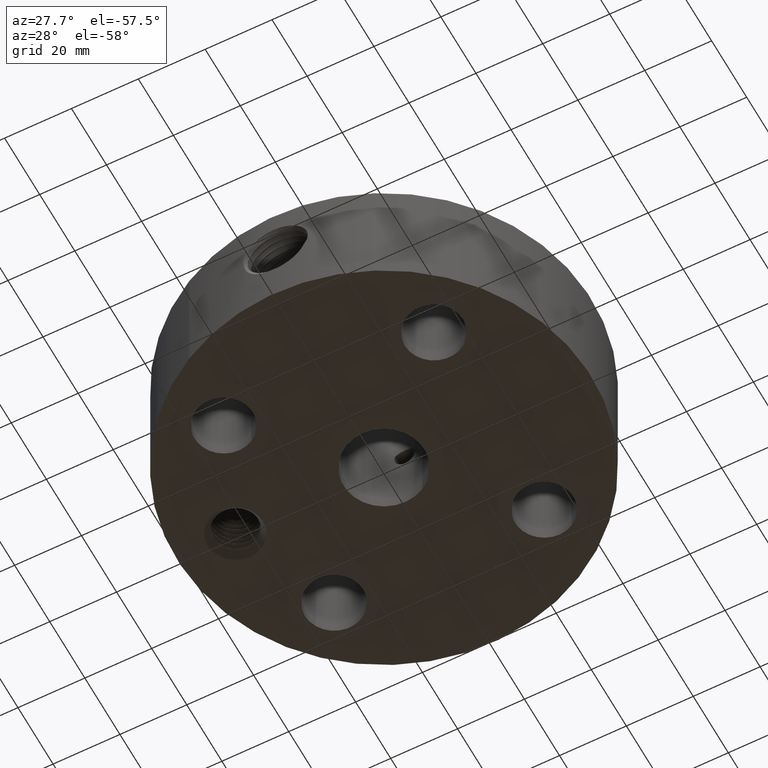
[diagram: clean part render]
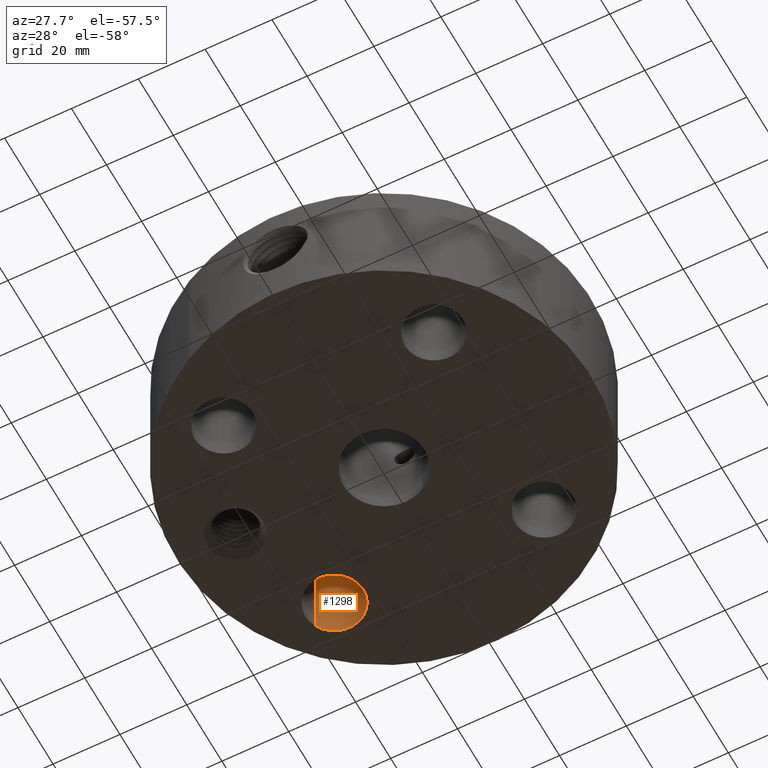
[diagram: same view with one face highlighted and labeled with its STEP entity id]
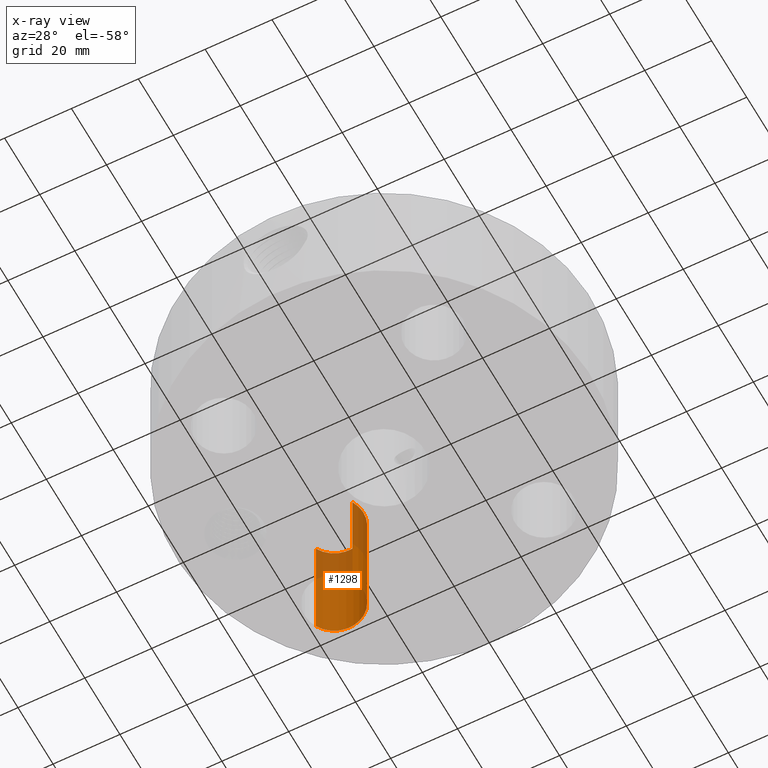
[diagram: x-ray of the same camera — body ghosted, the highlighted face saturated]
A machine part, auxiliary view. The second image highlights one B-rep face of the part: STEP entity #1298.
The next image is the same camera in x-ray: the body ghosted, the highlighted face saturated — about 34% of this face is hidden behind the body in this view.
In plain terms, the highlighted cylindrical surface (edge-blend (fillet) strip) has radius 8.763 mm, axis along (-0, 0, -1).
Its self-contained STEP definition (entity closure, byte-faithful):
#290=AXIS2_PLACEMENT_3D('Circle Axis2P3D',#288,#289,$) ;
#529=AXIS2_PLACEMENT_3D('Circle Axis2P3D',#527,#528,$) ;
#1273=AXIS2_PLACEMENT_3D('Cylinder Axis2P3D',#1270,#1271,#1272) ;
#283=CARTESIAN_POINT('Vertex',(-0.934670883228,1.07203505626,0.0600000000002)) ;
#285=CARTESIAN_POINT('Vertex',(-1.54020285093,1.4028386779,0.0600000000002)) ;
#288=CARTESIAN_POINT('Axis2P3D Location',(-1.23743686708,1.23743686708,0.0600000000002)) ;
#527=CARTESIAN_POINT('Axis2P3D Location',(-1.23743686708,1.23743686708,1.56000000001)) ;
#531=CARTESIAN_POINT('Vertex',(-1.54020285093,1.4028386779,1.56000000001)) ;
#533=CARTESIAN_POINT('Vertex',(-0.934670883228,1.07203505626,1.56000000001)) ;
#1270=CARTESIAN_POINT('Axis2P3D Location',(-1.23743686708,1.23743686708,1.55606299213)) ;
#1275=CARTESIAN_POINT('Line Origine',(-0.934670883228,1.07203505626,0.810000000003)) ;
#1280=CARTESIAN_POINT('Line Origine',(-1.54020285093,1.4028386779,0.810000000003)) ;
#289=DIRECTION('Axis2P3D Direction',(0.,0.,-0.0393700787402)) ;
#528=DIRECTION('Axis2P3D Direction',(0.,0.,-0.0393700787402)) ;
#1271=DIRECTION('Axis2P3D Direction',(-0.,0.,-0.0393700787402)) ;
#1272=DIRECTION('Axis2P3D XDirection',(-0.0345504945626,0.0188750212049,0.)) ;
#1276=DIRECTION('Vector Direction',(0.,0.,-0.0393700787402)) ;
#1281=DIRECTION('Vector Direction',(0.,0.,-0.0393700787402)) ;
#1277=VECTOR('Line Direction',#1276,0.0393700787402) ;
#1282=VECTOR('Line Direction',#1281,0.0393700787402) ;
#1293=ORIENTED_EDGE('',*,*,#1284,.F.) ;
#1294=ORIENTED_EDGE('',*,*,#292,.T.) ;
#1295=ORIENTED_EDGE('',*,*,#1279,.T.) ;
#1296=ORIENTED_EDGE('',*,*,#535,.F.) ;
#1298=ADVANCED_FACE('PartBody',(#1297),#1274,.F.) ;
#291=CIRCLE('generated circle',#290,0.345000000001) ;
#530=CIRCLE('generated circle',#529,0.345000000001) ;
#1274=CYLINDRICAL_SURFACE('generated cylinder',#1273,0.345000000001) ;
#292=EDGE_CURVE('',#286,#284,#291,.T.) ;
#535=EDGE_CURVE('',#532,#534,#530,.T.) ;
#1279=EDGE_CURVE('',#284,#534,#1278,.F.) ;
#1284=EDGE_CURVE('',#286,#532,#1283,.F.) ;
#1292=EDGE_LOOP('',(#1293,#1294,#1295,#1296)) ;
#1297=FACE_OUTER_BOUND('',#1292,.T.) ;
#1278=LINE('Line',#1275,#1277) ;
#1283=LINE('Line',#1280,#1282) ;
#284=VERTEX_POINT('',#283) ;
#286=VERTEX_POINT('',#285) ;
#532=VERTEX_POINT('',#531) ;
#534=VERTEX_POINT('',#533) ;